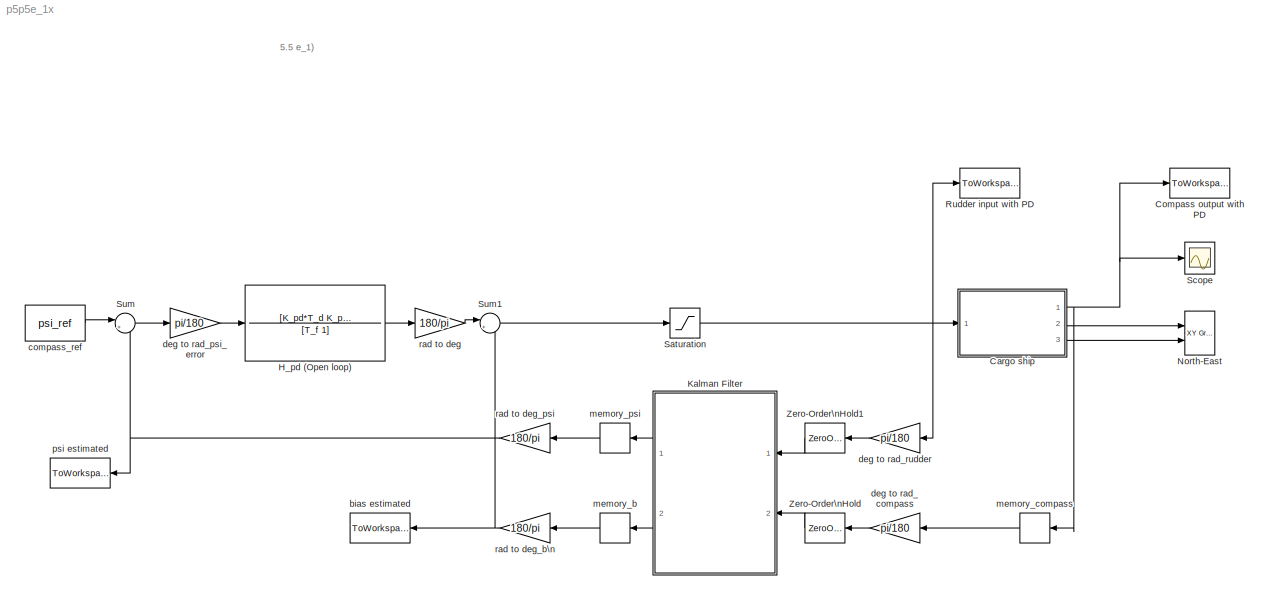
MODEL p5p5e_1x
KIND model
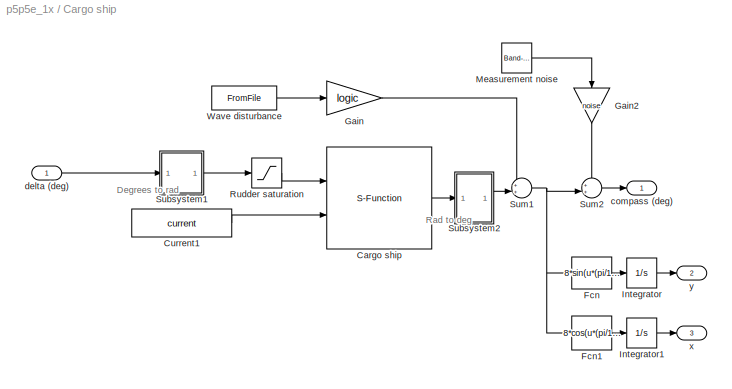
BLOCK [SubSystem] Cargo ship
  Ports = [1, 3]
  RequestExecContextInheritance = off
  SID = 1
  Variant = off
BLOCK [S-Function] Cargo ship/Cargo ship
  EnableBusSupport = off
  FunctionName = Cargoship
  Ports = [2, 1]
  SFcnIsStateOwnerBlock = off
  SFunctionDeploymentMode = off
  SID = 3
BLOCK [Constant] Cargo ship/Current1
  SID = 4
  Value = current
BLOCK [Fcn] Cargo ship/Fcn
  Expr = 8*sin(u*(pi/180))
  SID = 5
BLOCK [Fcn] Cargo ship/Fcn1
  Expr = 8*cos(u*(pi/180))
  SID = 6
BLOCK [Gain] Cargo ship/Gain
  Gain = logic
  SID = 7
BLOCK [Gain] Cargo ship/Gain2
  Gain = noise
  SID = 8
BLOCK [Integrator] Cargo ship/Integrator
  Ports = [1, 1]
  SID = 9
BLOCK [Integrator] Cargo ship/Integrator1
  Ports = [1, 1]
  SID = 10
BLOCK [Reference] Cargo ship/Measurement noise  REF=simulink/Sources/Band-Limited\nWhite Noise
  Cov = [0.001]
  Ports = [0, 1]
  SID = 11
  SourceBlock = simulink/Sources/Band-Limited\nWhite Noise
  SourceProductBaseCode = SL
  SourceProductName = Simulink
  SourceType = Band-Limited White Noise.
  Ts = .5
  VectorParams1D = on
  seed = [23341]
BLOCK [Saturate] Cargo ship/Rudder saturation
  InputPortMap = u0
  LowerLimit = -45*(pi/180)
  Ports = [1, 1]
  SID = 12
  UpperLimit = 45*(pi/180)
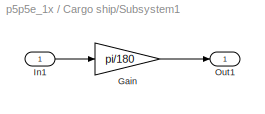
BLOCK [SubSystem] Cargo ship/Subsystem1
  Ports = [1, 1]
  RequestExecContextInheritance = off
  SID = 13
  Variant = off
BLOCK [Gain] Cargo ship/Subsystem1/Gain
  Gain = pi/180
  SID = 15
BLOCK [Inport] Cargo ship/Subsystem1/In1
  IconDisplay = Port number
  SID = 14
BLOCK [Outport] Cargo ship/Subsystem1/Out1
  IconDisplay = Port number
  SID = 16
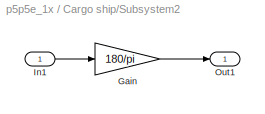
BLOCK [SubSystem] Cargo ship/Subsystem2
  Ports = [1, 1]
  RequestExecContextInheritance = off
  SID = 17
  Variant = off
BLOCK [Gain] Cargo ship/Subsystem2/Gain
  Gain = 180/pi
  SID = 19
BLOCK [Inport] Cargo ship/Subsystem2/In1
  IconDisplay = Port number
  SID = 18
BLOCK [Outport] Cargo ship/Subsystem2/Out1
  IconDisplay = Port number
  SID = 20
BLOCK [Sum] Cargo ship/Sum1
  IconShape = round
  InputSameDT = off
  Inputs = ++|
  OutDataTypeStr = Inherit: Inherit via internal rule
  Ports = [2, 1]
  SID = 21
BLOCK [Sum] Cargo ship/Sum2
  IconShape = round
  InputSameDT = off
  Inputs = ++|
  OutDataTypeStr = Inherit: Inherit via internal rule
  Ports = [2, 1]
  SID = 22
BLOCK [FromFile] Cargo ship/Wave disturbance
  FileName = wave.mat
  SID = 23
  SampleTime = 0
BLOCK [Outport] Cargo ship/compass (deg)
  IconDisplay = Port number
  SID = 24
BLOCK [Inport] Cargo ship/delta (deg)
  IconDisplay = Port number
  SID = 2
BLOCK [Outport] Cargo ship/x
  IconDisplay = Port number
  Port = 3
  SID = 26
BLOCK [Outport] Cargo ship/y
  IconDisplay = Port number
  Port = 2
  SID = 25
BLOCK [ToWorkspace] Compass output with PD
  FixptAsFi = on
  MaxDataPoints = inf
  Ports = [1]
  SID = 43
  SampleTime = -1
  Save2DSignal = 3-D array (concatenate along third dimension)
  SaveFormat = Structure With Time
  VariableName = compass_course
BLOCK [TransferFcn] H_pd (Open loop)
  Denominator = [T_f 1]
  Numerator = [K_pd*T_d K_pd]
  SID = 38
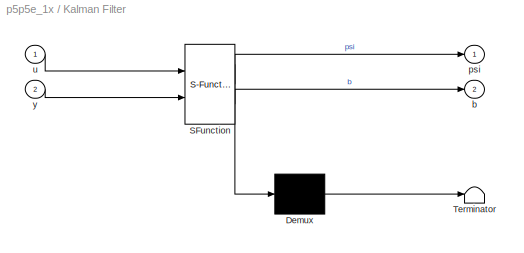
BLOCK [SubSystem] Kalman Filter
  ErrorFcn = Stateflow.Translate.translate
  PermitHierarchicalResolution = ExplicitOnly
  Ports = [2, 2]
  RequestExecContextInheritance = off
  SFBlockType = MATLAB Function
  SID = 46
  TreatAsAtomicUnit = on
  Variant = off
BLOCK [Demux] Kalman Filter/ Demux 
  Outputs = 1
  Ports = [1, 1]
  SID = 46::20
BLOCK [S-Function] Kalman Filter/ SFunction 
  EnableBusSupport = on
  FunctionName = sf_sfun
  Parameters = data
  PortCounts = [2 3]
  Ports = [2, 3]
  SFcnIsStateOwnerBlock = off
  SFunctionDeploymentMode = off
  SID = 46::19
  Tag = Stateflow S-Function p5p5e_1x 2
BLOCK [Terminator] Kalman Filter/ Terminator 
  SID = 46::21
BLOCK [Outport] Kalman Filter/b
  IconDisplay = Port number
  Port = 2
  SID = 46::24
BLOCK [Outport] Kalman Filter/psi
  IconDisplay = Port number
  SID = 46::5
BLOCK [Inport] Kalman Filter/u
  IconDisplay = Port number
  SID = 46::1
BLOCK [Inport] Kalman Filter/y
  IconDisplay = Port number
  Port = 2
  SID = 46::22
BLOCK [Reference] North-East  REF=simulink/Sinks/XY Graph
  Ports = [2]
  SID = 29
  SourceBlock = simulink/Sinks/XY Graph
  SourceProductBaseCode = SL
  SourceProductName = Simulink
  SourceType = XY scope.
  st = -1
  xmax = 5000
  xmin = -5000
  ymax = 5000
  ymin = -5000
BLOCK [ToWorkspace] Rudder input with PD
  FixptAsFi = on
  MaxDataPoints = inf
  Ports = [1]
  SID = 44
  SampleTime = -1
  Save2DSignal = 3-D array (concatenate along third dimension)
  SaveFormat = Structure With Time
  VariableName = rudder_input
BLOCK [Saturate] Saturation
  InputPortMap = u0
  LowerLimit = -45
  Ports = [1, 1]
  SID = 45
  UpperLimit = 45
BLOCK [Scope] Scope
  NumInputPorts = 1
  Ports = [1]
  SID = 30
  ScopeSpecificationString = Simulink.scopes.TimeScopeBlockCfg('CurrentConfiguration', extmgr.ConfigurationSet(extmgr.Configuration('Core','General UI',true),extmgr.Configuration('Core','Source UI',true),extmgr.Configuration('Sources','WiredSimulink',true,'DataLoggingSaveFormat','StructureWithTime','DataLoggingLimitDataPoints',true,'DataLoggingDecimation','1','DataLoggingDecimateData',true),extmgr.Configuration('Visuals','Tim...<+1652ch>
BLOCK [Sum] Sum
  IconShape = round
  InputSameDT = off
  Inputs = |+-
  OutDataTypeStr = Inherit: Inherit via internal rule
  Ports = [2, 1]
  SID = 42
  SaturateOnIntegerOverflow = off
BLOCK [Sum] Sum1
  IconShape = round
  InputSameDT = off
  Inputs = |++
  OutDataTypeStr = Inherit: Inherit via internal rule
  Ports = [2, 1]
  SID = 49
  SaturateOnIntegerOverflow = off
BLOCK [ZeroOrderHold] Zero-Order\nHold
  SID = 47
  SampleTime = 0.1
BLOCK [ZeroOrderHold] Zero-Order\nHold1
  SID = 48
  SampleTime = 0.1
BLOCK [ToWorkspace] bias estimated
  FixptAsFi = on
  MaxDataPoints = inf
  Ports = [1]
  SID = 50
  SampleTime = -1
  Save2DSignal = 3-D array (concatenate along third dimension)
  SaveFormat = Structure With Time
  VariableName = bias_estimated
BLOCK [Constant] compass_ref
  SID = 41
  Value = psi_ref
BLOCK [Gain] deg to rad_compass
  Gain = pi/180
  OutDataTypeStr = Inherit: Inherit via internal rule
  ParamDataTypeStr = Inherit: Inherit via internal rule
  SID = 56
  SaturateOnIntegerOverflow = off
BLOCK [Gain] deg to rad_psi_error
  Gain = pi/180
  OutDataTypeStr = Inherit: Inherit via internal rule
  ParamDataTypeStr = Inherit: Inherit via internal rule
  SID = 39
  SaturateOnIntegerOverflow = off
BLOCK [Gain] deg to rad_rudder
  Gain = pi/180
  OutDataTypeStr = Inherit: Inherit via internal rule
  ParamDataTypeStr = Inherit: Inherit via internal rule
  SID = 55
  SaturateOnIntegerOverflow = off
BLOCK [Memory] memory_b
  SID = 52
BLOCK [Memory] memory_compass
  SID = 61
BLOCK [Memory] memory_psi
  SID = 51
BLOCK [ToWorkspace] psi estimated
  FixptAsFi = on
  MaxDataPoints = inf
  Ports = [1]
  SID = 60
  SampleTime = -1
  Save2DSignal = 3-D array (concatenate along third dimension)
  SaveFormat = Structure With Time
  VariableName = psi_estimated
BLOCK [Gain] rad to deg
  Gain = 180/pi
  OutDataTypeStr = Inherit: Inherit via internal rule
  ParamDataTypeStr = Inherit: Inherit via internal rule
  SID = 40
  SaturateOnIntegerOverflow = off
BLOCK [Gain] rad to deg_b\n
  Gain = 180/pi
  OutDataTypeStr = Inherit: Inherit via internal rule
  ParamDataTypeStr = Inherit: Inherit via internal rule
  SID = 57
  SaturateOnIntegerOverflow = off
BLOCK [Gain] rad to deg_psi
  Gain = 180/pi
  OutDataTypeStr = Inherit: Inherit via internal rule
  ParamDataTypeStr = Inherit: Inherit via internal rule
  SID = 59
  SaturateOnIntegerOverflow = off
ANNOTATION (root): \n \n 5.5 e_1)
ANNOTATION Cargo ship: Degrees to rad
ANNOTATION Cargo ship: Rad to deg
LINE Cargo ship/Cargo ship:1 -> Cargo ship/Subsystem2:1
LINE Cargo ship/Current1:1 -> Cargo ship/Cargo ship:2
LINE Cargo ship/Fcn1:1 -> Cargo ship/Integrator1:1
LINE Cargo ship/Fcn:1 -> Cargo ship/Integrator:1
LINE Cargo ship/Gain2:1 -> Cargo ship/Sum2:1
LINE Cargo ship/Gain:1 -> Cargo ship/Sum1:1
LINE Cargo ship/Integrator1:1 -> Cargo ship/x:1
LINE Cargo ship/Integrator:1 -> Cargo ship/y:1
LINE Cargo ship/Measurement noise:1 -> Cargo ship/Gain2:1
LINE Cargo ship/Rudder saturation:1 -> Cargo ship/Cargo ship:1
LINE Cargo ship/Subsystem1/Gain:1 -> Cargo ship/Subsystem1/Out1:1
LINE Cargo ship/Subsystem1/In1:1 -> Cargo ship/Subsystem1/Gain:1
LINE Cargo ship/Subsystem1:1 -> Cargo ship/Rudder saturation:1
LINE Cargo ship/Subsystem2/Gain:1 -> Cargo ship/Subsystem2/Out1:1
LINE Cargo ship/Subsystem2/In1:1 -> Cargo ship/Subsystem2/Gain:1
LINE Cargo ship/Subsystem2:1 -> Cargo ship/Sum1:2
NET Cargo ship/Sum1:1 -> Cargo ship/Fcn1:1, Cargo ship/Fcn:1, Cargo ship/Sum2:2
LINE Cargo ship/Sum2:1 -> Cargo ship/compass (deg):1
LINE Cargo ship/Wave disturbance:1 -> Cargo ship/Gain:1
LINE Cargo ship/delta (deg):1 -> Cargo ship/Subsystem1:1
NET Cargo ship:1 -> Compass output with PD:1, Scope:1, memory_compass:1
LINE Cargo ship:2 -> North-East:1
LINE Cargo ship:3 -> North-East:2
LINE H_pd (Open loop):1 -> rad to deg:1
LINE Kalman Filter/ Demux :1 -> Kalman Filter/ Terminator :1
LINE Kalman Filter/ SFunction :1 -> Kalman Filter/ Demux :1
LINE Kalman Filter/ SFunction :2 -> Kalman Filter/psi:1
LINE Kalman Filter/ SFunction :3 -> Kalman Filter/b:1
LINE Kalman Filter/u:1 -> Kalman Filter/ SFunction :1
LINE Kalman Filter/y:1 -> Kalman Filter/ SFunction :2
LINE Kalman Filter:1 -> memory_psi:1
LINE Kalman Filter:2 -> memory_b:1
NET Saturation:1 -> Cargo ship:1, Rudder input with PD:1, deg to rad_rudder:1
LINE Sum1:1 -> Saturation:1
LINE Sum:1 -> deg to rad_psi_error:1
LINE Zero-Order\nHold1:1 -> Kalman Filter:1
LINE Zero-Order\nHold:1 -> Kalman Filter:2
LINE compass_ref:1 -> Sum:1
LINE deg to rad_compass:1 -> Zero-Order\nHold:1
LINE deg to rad_psi_error:1 -> H_pd (Open loop):1
LINE deg to rad_rudder:1 -> Zero-Order\nHold1:1
LINE memory_b:1 -> rad to deg_b\n:1
LINE memory_compass:1 -> deg to rad_compass:1
LINE memory_psi:1 -> rad to deg_psi:1
LINE rad to deg:1 -> Sum1:1
NET rad to deg_b\n:1 -> Sum1:2, bias estimated:1
NET rad to deg_psi:1 -> Sum:2, psi estimated:1
note: NET lines group one-source signal fan-out (src -> all destinations, sorted); 1:1 wires keep LINE
CHART Kalman Filter states=1 transitions=1
  STATE_LABEL 'eML_blk_kernel()'
